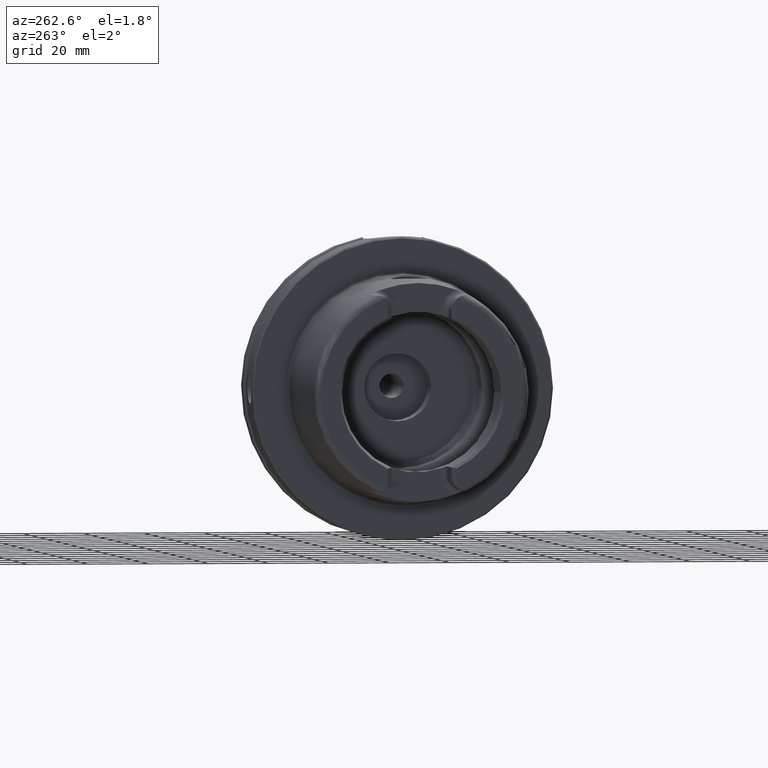
[diagram: clean part render]
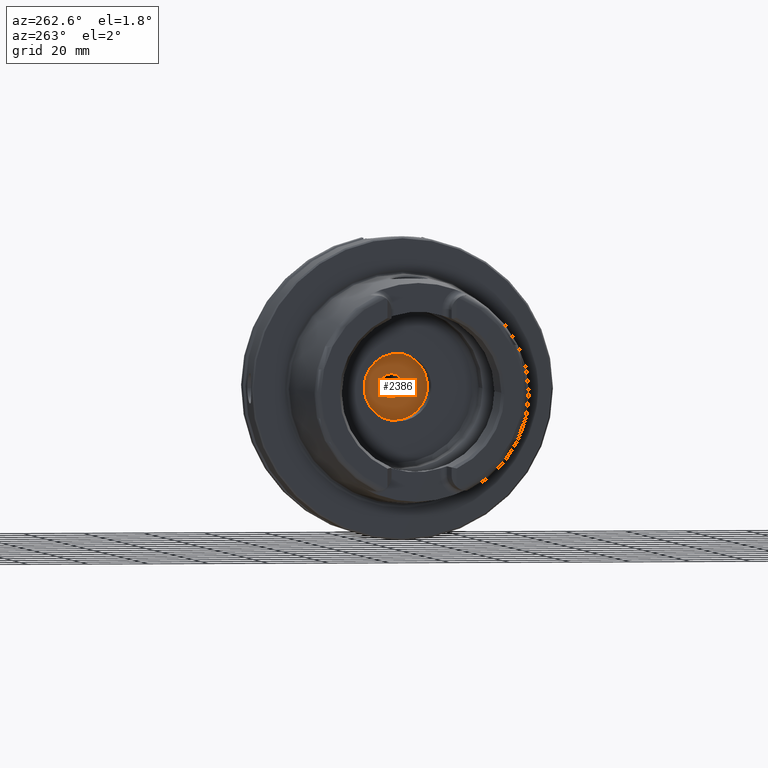
[diagram: same view with one face highlighted and labeled with its STEP entity id]
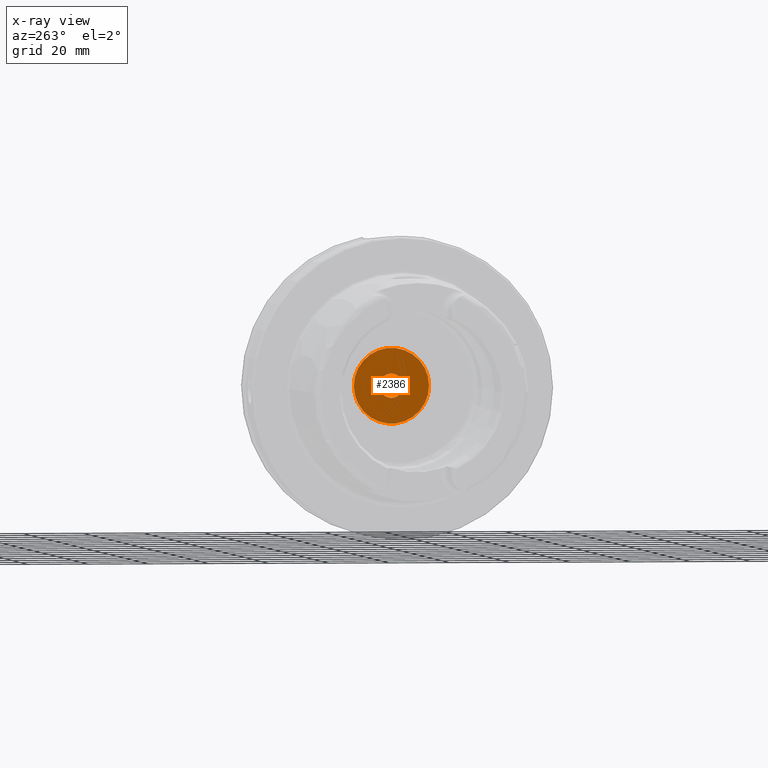
[diagram: x-ray of the same camera — body ghosted, the highlighted face saturated]
A machine part, auxiliary view. The second image highlights one B-rep face of the part: STEP entity #2386.
The next image is the same camera in x-ray: the body ghosted, the highlighted face saturated — about 0% of this face is hidden behind the body in this view.
In plain terms, the highlighted planar face has unit normal (1, 0, 0).
Its self-contained STEP definition (entity closure, byte-faithful):
#102=FACE_BOUND('',#690,.T.);
#138=PLANE('',#2715);
#545=FACE_OUTER_BOUND('',#689,.T.);
#689=EDGE_LOOP('',(#2169));
#690=EDGE_LOOP('',(#2170));
#772=CIRCLE('',#2518,4.);
#871=CIRCLE('',#2716,12.5);
#947=VERTEX_POINT('',#3677);
#1118=VERTEX_POINT('',#5081);
#1212=EDGE_CURVE('',#947,#947,#772,.T.);
#1474=EDGE_CURVE('',#1118,#1118,#871,.T.);
#2169=ORIENTED_EDGE('',*,*,#1474,.T.);
#2170=ORIENTED_EDGE('',*,*,#1212,.T.);
#2386=ADVANCED_FACE('',(#545,#102),#138,.F.);
#2518=AXIS2_PLACEMENT_3D('',#3678,#2955,#2956);
#2715=AXIS2_PLACEMENT_3D('',#5080,#3436,#3437);
#2716=AXIS2_PLACEMENT_3D('',#5082,#3438,#3439);
#2955=DIRECTION('center_axis',(1.,0.,0.));
#2956=DIRECTION('ref_axis',(0.,-1.06221930374718E-16,1.));
#3436=DIRECTION('center_axis',(1.,0.,0.));
#3437=DIRECTION('ref_axis',(0.,0.,-1.));
#3438=DIRECTION('center_axis',(-1.,0.,0.));
#3439=DIRECTION('ref_axis',(0.,0.,1.));
#3677=CARTESIAN_POINT('',(28.5,9.14746441157813E-16,-4.));
#3678=CARTESIAN_POINT('Origin',(28.5,0.,0.));
#5080=CARTESIAN_POINT('Origin',(28.5,12.5,0.));
#5081=CARTESIAN_POINT('',(28.5,-12.5,1.53080849893419E-15));
#5082=CARTESIAN_POINT('Origin',(28.5,0.,0.));